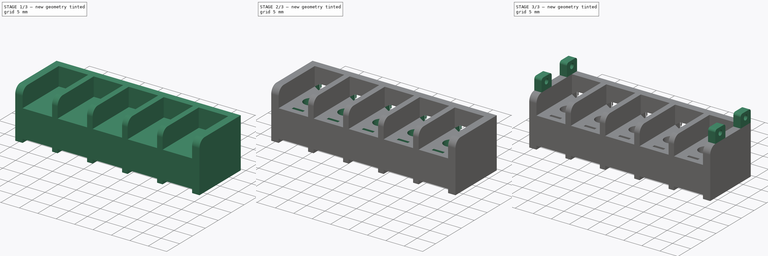
[diagram: build sequence overview — one tinted view per stage of 3, left to right]
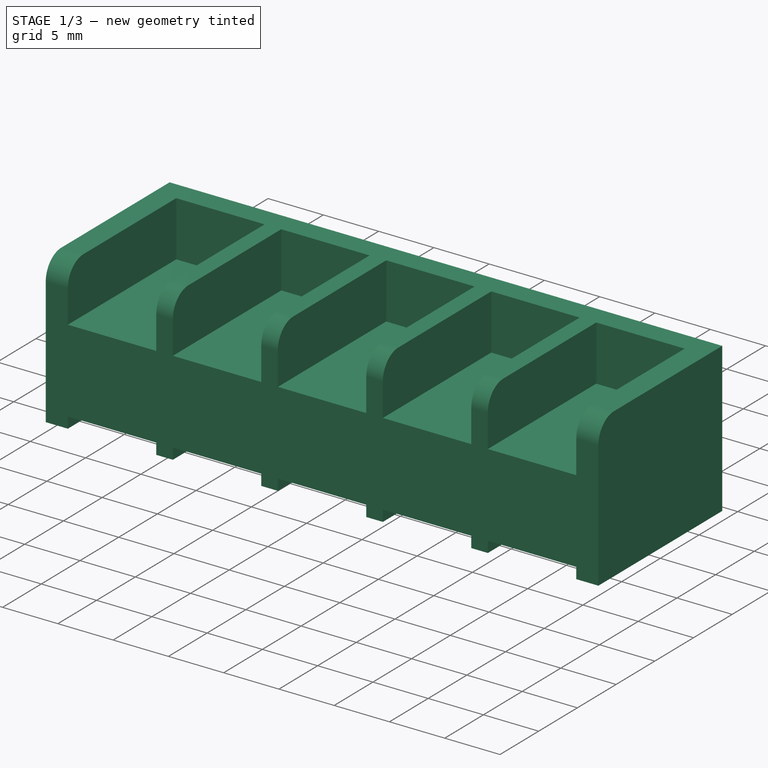
[diagram: stage 1 of 3 — iso view after this stage's code; geometry added in this stage tinted green]
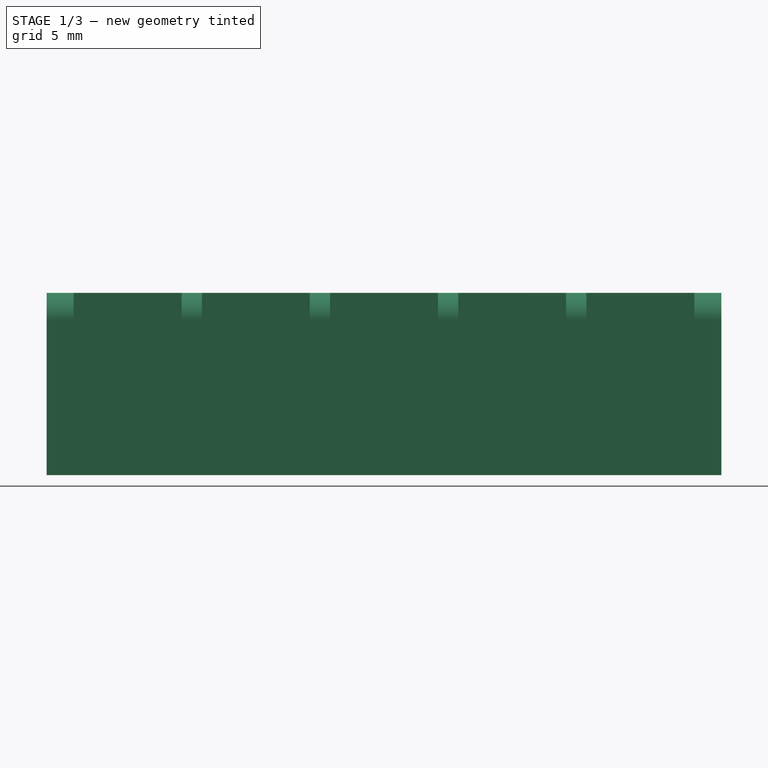
[diagram: stage 1 of 3 — front view after this stage's code; geometry added in this stage tinted green]
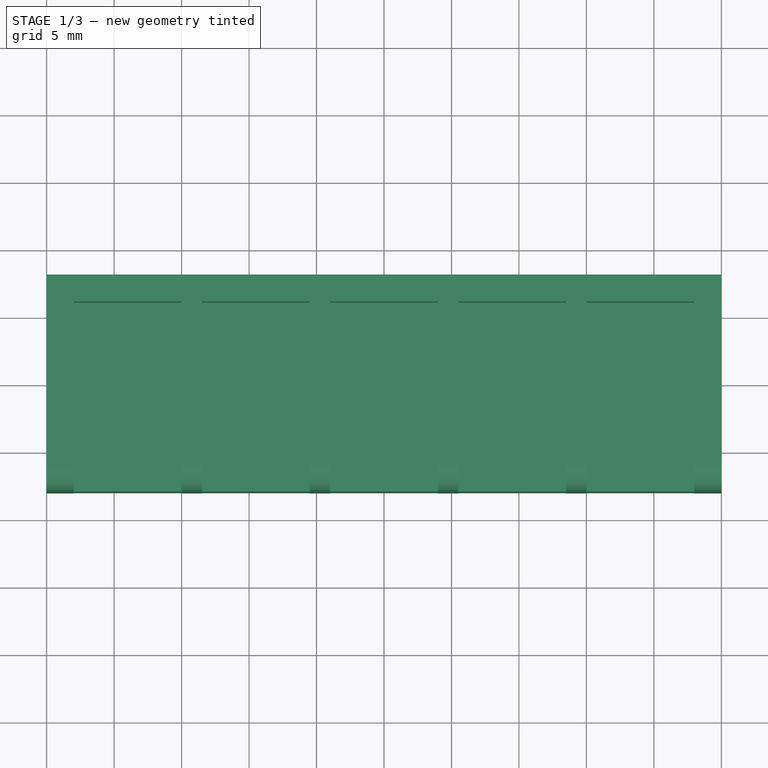
[diagram: stage 1 of 3 — top view after this stage's code; geometry added in this stage tinted green]
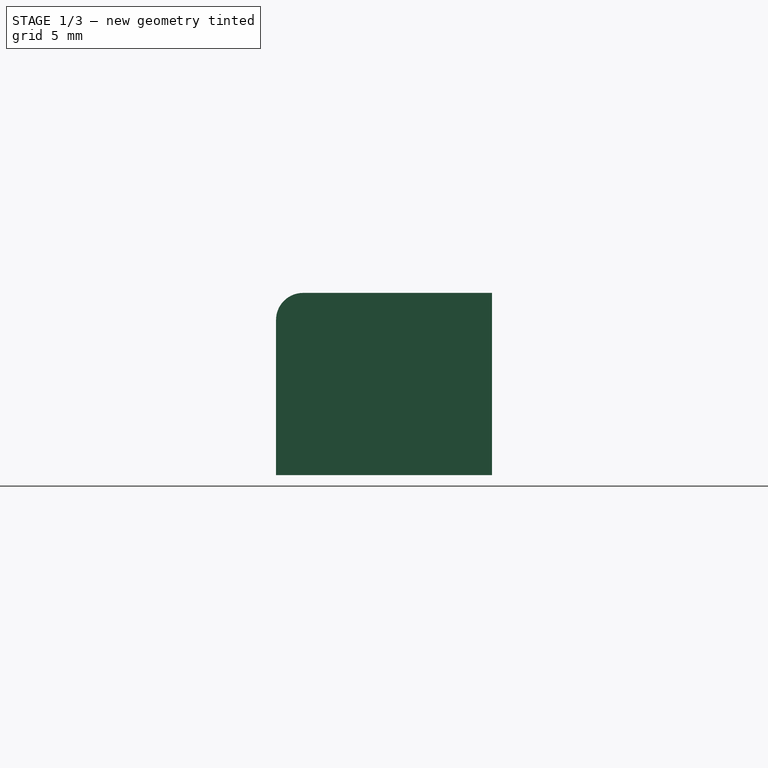
[diagram: stage 1 of 3 — right view after this stage's code; geometry added in this stage tinted green]
FCSTD DOCUMENT  (FreeCAD 0.19R23058 (Git))
Label: main
License: All rights reserved
LicenseURL: http://en.wikipedia.org/wiki/All_rights_reserved
objects: Sketcher::SketchObject×7, PartDesign::Line×7, PartDesign::Pocket×4, PartDesign::Pad×3, PartDesign::CoordinateSystem×1, PartDesign::Body×1
note: 30 computed .brp shape members not serialized (recipe doc carries the construction recipe); baked Part::Feature solids carry a one-line shape summary decoded from their .brp

FEATURE [Sketcher::SketchObject] Sketch
  MapMode = 5
  Placement = pos=(0,0,0) rot=(0.57735,0.57735,0.57735;2.0944rad)
  Support = -> [YZ_Plane]
  sketch-geometry (5):
    g0: LineSegment StartX=-6 StartY=13.5 StartZ=0 EndX=8 EndY=13.5 EndZ=0
    g1: LineSegment StartX=8 StartY=13.5 StartZ=0 EndX=8 EndY=0 EndZ=0
    g2: LineSegment StartX=8 StartY=0 StartZ=0 EndX=-8 EndY=0 EndZ=0
    g3: LineSegment StartX=-8 StartY=0 StartZ=0 EndX=-8 EndY=11.5 EndZ=0
    g4: ArcOfCircle CenterX=-6 CenterY=11.5 CenterZ=0 NormalX=0 NormalY=0 NormalZ=1 AngleXU=0 Radius=2 StartAngle=1.5708 EndAngle=3.14159
  constraints (13):
    c: Coincident(g0,g1)
    c: Coincident(g1,g2)
    c: Coincident(g2,g3)
    c: Horizontal(g0)
    c: Vertical(g1)
    c: Vertical(g3)
    c: PointOnObject(g2,g-1)
    c: Symmetric(g2,g1,g-2)
    c: DistanceX(g2,g2) = 16
    c: Tangent(g3,g4) = 1.5708
    c: Tangent(g0,g4) = 1.5708
    c: Radius(g4) = 2
    c: DistanceY(g1,g1) = 13.5
FEATURE [PartDesign::Pad] Pad
  Direction = (1,1,1)
  Length = 50
  Length2 = 100
  Midplane = true
  Placement = pos=(0,0,0) rot=(0.57735,0.57735,0.57735;2.0944rad)
  Profile = -> Sketch
  Type = 0
FEATURE [Sketcher::SketchObject] Sketch001
  ExternalGeometry = -> [Pad]
  MapMode = 5
  Placement = pos=(-3.5e-15,-8,1.8e-15) rot=(-0.57735,-0.57735,0.57735;4.18879rad)
  Support = -> [Pad]
  sketch-geometry (58):
    g0: LineSegment StartX=-1 StartY=-23 StartZ=0 EndX=0 EndY=-23 EndZ=0
    g1: LineSegment StartX=0 StartY=-23 StartZ=0 EndX=0 EndY=-15 EndZ=0
    g2: LineSegment StartX=0 StartY=-15 StartZ=0 EndX=-1 EndY=-15 EndZ=0
    g3: LineSegment StartX=-1 StartY=-15 StartZ=0 EndX=-1 EndY=-23 EndZ=0
    g4: LineSegment StartX=-1 StartY=-13.5 StartZ=0 EndX=0 EndY=-13.5 EndZ=0
    g5: LineSegment StartX=0 StartY=-13.5 StartZ=0 EndX=0 EndY=-5.5 EndZ=0
    g6: LineSegment StartX=0 StartY=-5.5 StartZ=0 EndX=-1 EndY=-5.5 EndZ=0
    g7: LineSegment StartX=-1 StartY=-5.5 StartZ=0 EndX=-1 EndY=-13.5 EndZ=0
    g8: LineSegment StartX=-1 StartY=-4 StartZ=0 EndX=0 EndY=-4 EndZ=0
    g9: LineSegment StartX=0 StartY=-4 StartZ=0 EndX=0 EndY=4 EndZ=0
    g10: LineSegment StartX=0 StartY=4 StartZ=0 EndX=-1 EndY=4 EndZ=0
    g11: LineSegment StartX=-1 StartY=4 StartZ=0 EndX=-1 EndY=-4 EndZ=0
    g12: LineSegment StartX=-1 StartY=5.5 StartZ=0 EndX=0 EndY=5.5 EndZ=0
    g13: LineSegment StartX=0 StartY=5.5 StartZ=0 EndX=0 EndY=13.5 EndZ=0
    g14: LineSegment StartX=0 StartY=13.5 StartZ=0 EndX=-1 EndY=13.5 EndZ=0
    g15: LineSegment StartX=-1 StartY=13.5 StartZ=0 EndX=-1 EndY=5.5 EndZ=0
    g16: LineSegment StartX=-1 StartY=15 StartZ=0 EndX=0 EndY=15 EndZ=0
    g17: LineSegment StartX=0 StartY=15 StartZ=0 EndX=0 EndY=23 EndZ=0
    g18: LineSegment StartX=0 StartY=23 StartZ=0 EndX=-1 EndY=23 EndZ=0
    g19: LineSegment StartX=-1 StartY=23 StartZ=0 EndX=-1 EndY=15 EndZ=0
    g20: LineSegment StartX=-13.5 StartY=-23 StartZ=0 EndX=-8.5 EndY=-23 EndZ=0
    g21: LineSegment StartX=-8.5 StartY=-23 StartZ=0 EndX=-8.5 EndY=-15 EndZ=0
    g22: LineSegment StartX=-8.5 StartY=-15 StartZ=0 EndX=-13.5 EndY=-15 EndZ=0
    g23: LineSegment StartX=-13.5 StartY=-15 StartZ=0 EndX=-13.5 EndY=-23 EndZ=0
    g24: LineSegment StartX=-13.5 StartY=-13.5 StartZ=0 EndX=-8.5 EndY=-13.5 EndZ=0
    g25: LineSegment StartX=-8.5 StartY=-13.5 StartZ=0 EndX=-8.5 EndY=-5.5 EndZ=0
    g26: LineSegment StartX=-8.5 StartY=-5.5 StartZ=0 EndX=-13.5 EndY=-5.5 EndZ=0
    g27: LineSegment StartX=-13.5 StartY=-5.5 StartZ=0 EndX=-13.5 EndY=-13.5 EndZ=0
    g28: LineSegment StartX=-13.5 StartY=-4 StartZ=0 EndX=-8.5 EndY=-4 EndZ=0
    g29: LineSegment StartX=-8.5 StartY=-4 StartZ=0 EndX=-8.5 EndY=4 EndZ=0
    g30: LineSegment StartX=-8.5 StartY=4 StartZ=0 EndX=-13.5 EndY=4 EndZ=0
    g31: LineSegment StartX=-13.5 StartY=4 StartZ=0 EndX=-13.5 EndY=-4 EndZ=0
    g32: LineSegment StartX=-13.5 StartY=5.5 StartZ=0 EndX=-8.5 EndY=5.5 EndZ=0
    g33: LineSegment StartX=-8.5 StartY=5.5 StartZ=0 EndX=-8.5 EndY=13.5 EndZ=0
    g34: LineSegment StartX=-8.5 StartY=13.5 StartZ=0 EndX=-13.5 EndY=13.5 EndZ=0
    g35: LineSegment StartX=-13.5 StartY=13.5 StartZ=0 EndX=-13.5 EndY=5.5 EndZ=0
    g36: LineSegment StartX=-13.5 StartY=15 StartZ=0 EndX=-8.5 EndY=15 EndZ=0
    g37: LineSegment StartX=-8.5 StartY=15 StartZ=0 EndX=-8.5 EndY=23 EndZ=0
    g38: LineSegment StartX=-8.5 StartY=23 StartZ=0 EndX=-13.5 EndY=23 EndZ=0
    g39: LineSegment StartX=-13.5 StartY=23 StartZ=0 EndX=-13.5 EndY=15 EndZ=0
    g40: LineSegment [constr] StartX=-8.5 StartY=-15 StartZ=0 EndX=-1 EndY=-15 EndZ=0
    g41: LineSegment [constr] StartX=-1 StartY=-15 StartZ=0 EndX=-1 EndY=-13.5 EndZ=0
    g42: LineSegment [constr] StartX=-1 StartY=-13.5 StartZ=0 EndX=-8.5 EndY=-13.5 EndZ=0
    g43: LineSegment [constr] StartX=-8.5 StartY=-13.5 StartZ=0 EndX=-8.5 EndY=-15 EndZ=0
    g44: LineSegment [constr] StartX=-8.5 StartY=-5.5 StartZ=0 EndX=-1 EndY=-5.5 EndZ=0
    g45: LineSegment [constr] StartX=-1 StartY=-5.5 StartZ=0 EndX=-1 EndY=-4 EndZ=0
    g46: LineSegment [constr] StartX=-1 StartY=-4 StartZ=0 EndX=-8.5 EndY=-4 EndZ=0
    g47: LineSegment [constr] StartX=-8.5 StartY=-4 StartZ=0 EndX=-8.5 EndY=-5.5 EndZ=0
    g48: LineSegment [constr] StartX=-8.5 StartY=4 StartZ=0 EndX=-1 EndY=4 EndZ=0
    g49: LineSegment [constr] StartX=-1 StartY=4 StartZ=0 EndX=-1 EndY=5.5 EndZ=0
    g50: LineSegment [constr] StartX=-1 StartY=5.5 StartZ=0 EndX=-8.5 EndY=5.5 EndZ=0
    g51: LineSegment [constr] StartX=-8.5 StartY=5.5 StartZ=0 EndX=-8.5 EndY=4 EndZ=0
    g52: LineSegment [constr] StartX=-8.5 StartY=13.5 StartZ=0 EndX=-1 EndY=13.5 EndZ=0
    g53: LineSegment [constr] StartX=-1 StartY=13.5 StartZ=0 EndX=-1 EndY=15 EndZ=0
    g54: LineSegment [constr] StartX=-1 StartY=15 StartZ=0 EndX=-8.5 EndY=15 EndZ=0
    g55: LineSegment [constr] StartX=-8.5 StartY=15 StartZ=0 EndX=-8.5 EndY=13.5 EndZ=0
    g56: LineSegment [constr] StartX=-8.5 StartY=-23 StartZ=0 EndX=-1 EndY=-23 EndZ=0
    g57: LineSegment [constr] StartX=-8.5 StartY=23 StartZ=0 EndX=-1 EndY=23 EndZ=0
  constraints (155):
    c: Coincident(g0,g1)
    c: Coincident(g1,g2)
    c: Coincident(g2,g3)
    c: Coincident(g3,g0)
    c: Horizontal(g0)
    c: Horizontal(g2)
    c: Vertical(g1)
    c: Vertical(g3)
    c: Coincident(g4,g5)
    c: Coincident(g5,g6)
    c: Coincident(g6,g7)
    c: Coincident(g7,g4)
    c: Horizontal(g4)
    c: Horizontal(g6)
    c: Vertical(g5)
    c: Vertical(g7)
    c: Coincident(g8,g9)
    c: Coincident(g9,g10)
    c: Coincident(g10,g11)
    c: Coincident(g11,g8)
    c: Horizontal(g8)
    c: Horizontal(g10)
    c: Vertical(g11)
    c: Coincident(g12,g13)
    c: Coincident(g13,g14)
    c: Coincident(g14,g15)
    c: Coincident(g15,g12)
    c: Horizontal(g12)
    c: Horizontal(g14)
    c: Vertical(g13)
    c: Vertical(g15)
    c: Coincident(g16,g17)
    c: Coincident(g17,g18)
    c: Coincident(g18,g19)
    c: Coincident(g19,g16)
    c: Horizontal(g16)
    c: Horizontal(g18)
    c: Vertical(g17)
    c: Vertical(g19)
    c: Coincident(g20,g21)
    c: Coincident(g21,g22)
    c: Coincident(g22,g23)
    c: Coincident(g23,g20)
    c: Horizontal(g20)
    c: Horizontal(g22)
    c: Vertical(g21)
    c: Vertical(g23)
    c: Coincident(g24,g25)
    c: Coincident(g25,g26)
    c: Coincident(g26,g27)
    c: Coincident(g27,g24)
    c: Horizontal(g24)
    c: Horizontal(g26)
    c: Vertical(g25)
    c: Vertical(g27)
    c: Coincident(g28,g29)
    c: Coincident(g29,g30)
    c: Coincident(g30,g31)
    c: Coincident(g31,g28)
    c: Horizontal(g28)
    c: Horizontal(g30)
    c: Vertical(g29)
    c: Vertical(g31)
    c: Coincident(g32,g33)
    c: Coincident(g33,g34)
    c: Coincident(g34,g35)
    c: Coincident(g35,g32)
    c: Horizontal(g32)
    c: Horizontal(g34)
    c: Vertical(g33)
    c: Vertical(g35)
    c: Coincident(g36,g37)
    c: Coincident(g37,g38)
    c: Coincident(g38,g39)
    c: Coincident(g39,g36)
    c: Horizontal(g36)
    c: Horizontal(g38)
    c: Vertical(g37)
    c: Vertical(g39)
    c: Coincident(g40,g41)
    c: Coincident(g41,g42)
    c: Coincident(g42,g43)
    c: Coincident(g43,g40)
    c: Horizontal(g40)
    c: Horizontal(g42)
    c: Vertical(g41)
    c: Vertical(g43)
    c: Coincident(g40,g21)
    c: Coincident(g41,g4)
    c: Coincident(g44,g45)
    c: Coincident(g45,g46)
    c: Coincident(g46,g47)
    c: Coincident(g47,g44)
    c: Horizontal(g44)
    c: Horizontal(g46)
    c: Vertical(g45)
    c: Vertical(g47)
    c: Coincident(g44,g25)
    c: Coincident(g45,g8)
    c: Coincident(g48,g49)
    c: Coincident(g49,g50)
    c: Coincident(g50,g51)
    c: Coincident(g51,g48)
    c: Horizontal(g48)
    c: Horizontal(g50)
    c: Vertical(g49)
    c: Vertical(g51)
    c: Coincident(g48,g29)
    c: Coincident(g49,g12)
    c: Coincident(g52,g53)
    c: Coincident(g53,g54)
    c: Coincident(g54,g55)
    c: Coincident(g55,g52)
    c: Horizontal(g52)
    c: Horizontal(g54)
    c: Vertical(g53)
    c: Vertical(g55)
    c: Coincident(g52,g33)
    c: Coincident(g53,g16)
    c: Coincident(g42,g24)
    c: Coincident(g2,g40)
    c: Coincident(g44,g6)
    c: Coincident(g46,g28)
    c: Coincident(g50,g32)
    c: Coincident(g10,g48)
    c: Coincident(g52,g14)
    c: Coincident(g54,g36)
    c: DistanceX(g0,g0) = 1
    c: Equal(g2,g4)
    c: Equal(g4,g8)
    c: Equal(g8,g12)
    c: Equal(g12,g16)
    c: DistanceX(g20,g20) = 5
    c: Equal(g22,g24)
    c: Equal(g24,g28)
    c: Equal(g28,g32)
    c: Equal(g32,g36)
    c: DistanceY(g41,g41) = 1.5
    c: Equal(g41,g45)
    c: Equal(g45,g49)
    c: Equal(g49,g53)
    c: Coincident(g56,g20)
    c: Coincident(g56,g0)
    c: Horizontal(g56)
    c: Coincident(g57,g37)
    c: Coincident(g57,g18)
    c: Horizontal(g57)
    c: DistanceY(g1,g1) = 8
    c: Equal(g1,g5)
    c: Equal(g5,g9)
    c: Equal(g9,g13)
    c: Equal(g13,g17)
    c: Symmetric(g8,g9,g-1)
    c: PointOnObject(g0,g-2)
    c: PointOnObject(g20,g-3)
FEATURE [PartDesign::Pocket] Pocket
  BaseFeature = -> Pad
  Length = 14
  Length2 = 100
  Placement = pos=(0,0,0) rot=(0.57735,0.57735,0.57735;2.0944rad)
  Profile = -> Sketch001
  Type = 0
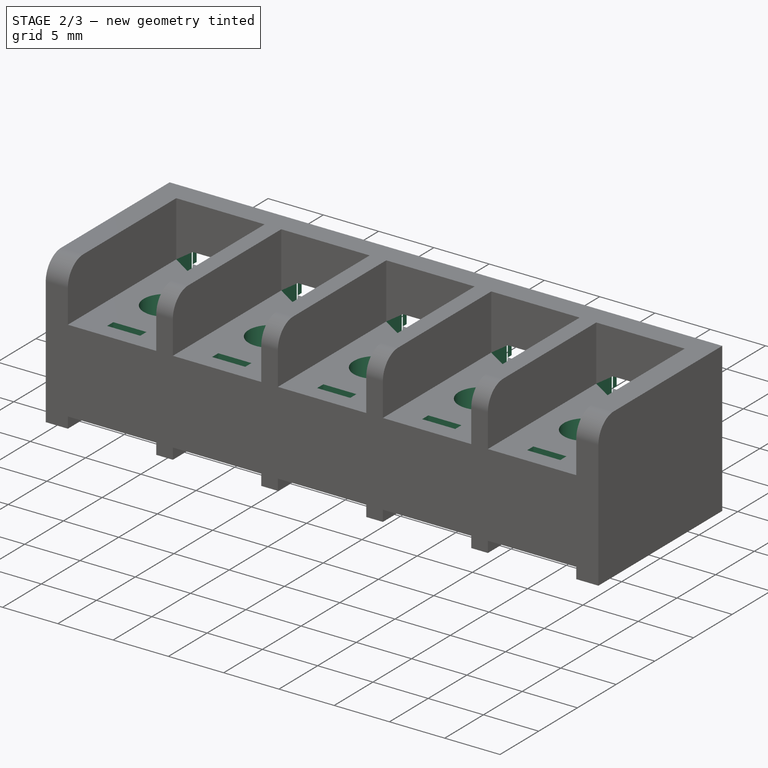
[diagram: stage 2 of 3 — iso view after this stage's code; geometry added in this stage tinted green]
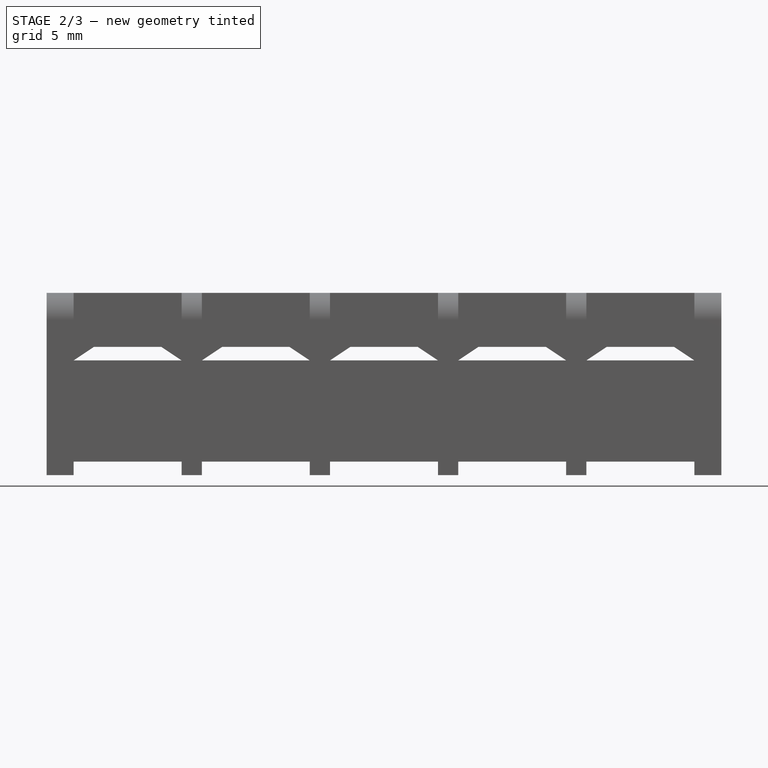
[diagram: stage 2 of 3 — front view after this stage's code; geometry added in this stage tinted green]
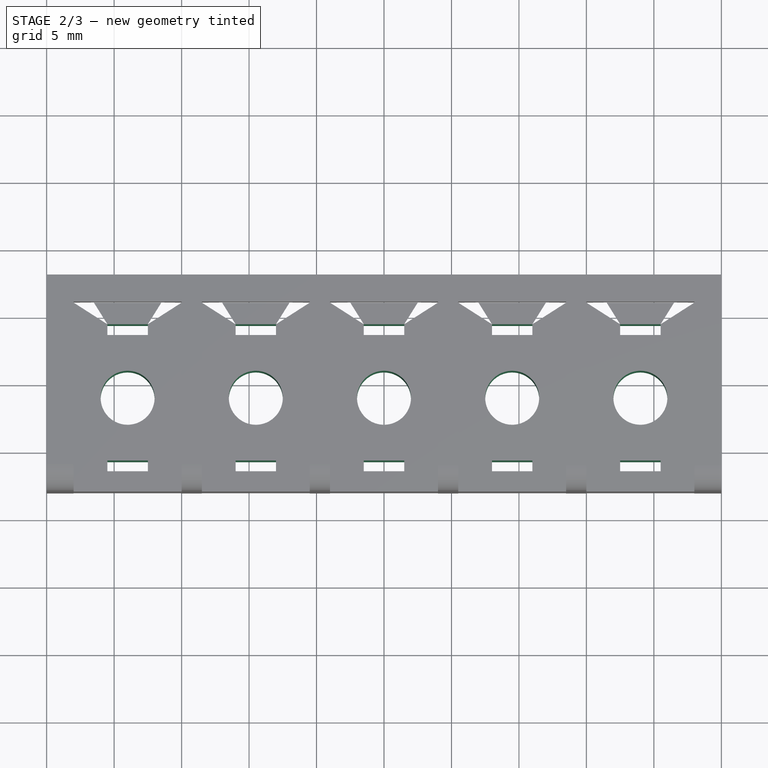
[diagram: stage 2 of 3 — top view after this stage's code; geometry added in this stage tinted green]
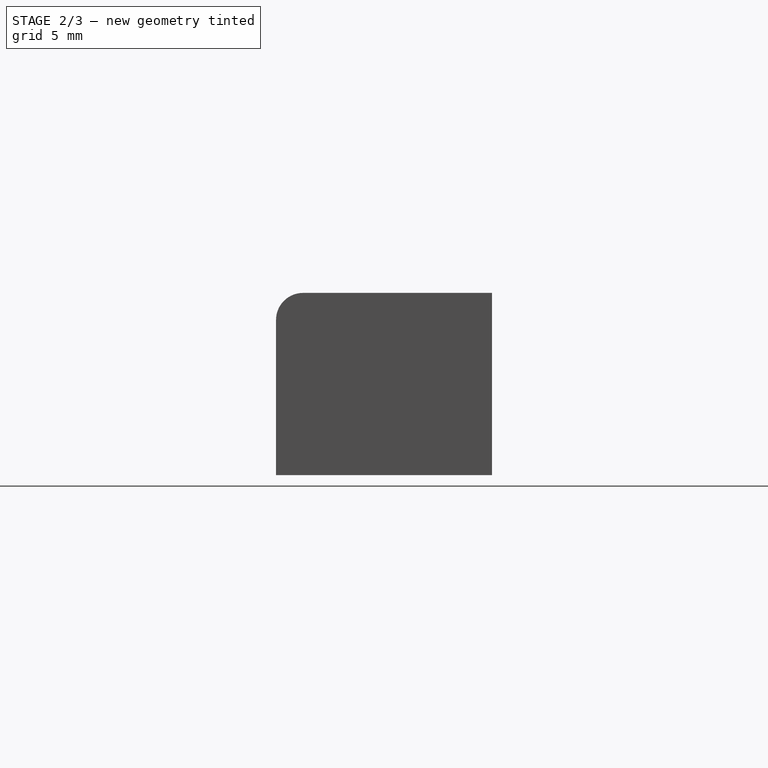
[diagram: stage 2 of 3 — right view after this stage's code; geometry added in this stage tinted green]
FEATURE [Sketcher::SketchObject] Sketch002
  ExternalGeometry = -> [Sketch001]
  MapMode = 5
  Placement = pos=(3.5e-15,8,-1.8e-15) rot=(0.57735,0.57735,0.57735;4.18879rad)
  Support = -> [Pocket]
  sketch-geometry (24):
    g0: LineSegment StartX=0 StartY=23 StartZ=0 EndX=12.5 EndY=23 EndZ=0
    g1: LineSegment StartX=12.5 StartY=23 StartZ=0 EndX=12.5 EndY=15 EndZ=0
    g2: LineSegment StartX=12.5 StartY=15 StartZ=0 EndX=0 EndY=15 EndZ=0
    g3: LineSegment StartX=0 StartY=15 StartZ=0 EndX=0 EndY=23 EndZ=0
    g4: LineSegment StartX=0 StartY=13.5 StartZ=0 EndX=12.5 EndY=13.5 EndZ=0
    g5: LineSegment StartX=12.5 StartY=13.5 StartZ=0 EndX=12.5 EndY=5.5 EndZ=0
    g6: LineSegment StartX=12.5 StartY=5.5 StartZ=0 EndX=0 EndY=5.5 EndZ=0
    g7: LineSegment StartX=0 StartY=5.5 StartZ=0 EndX=0 EndY=13.5 EndZ=0
    g8: LineSegment StartX=0 StartY=4 StartZ=0 EndX=12.5 EndY=4 EndZ=0
    g9: LineSegment StartX=12.5 StartY=4 StartZ=0 EndX=12.5 EndY=-4 EndZ=0
    g10: LineSegment StartX=12.5 StartY=-4 StartZ=0 EndX=0 EndY=-4 EndZ=0
    g11: LineSegment StartX=0 StartY=-4 StartZ=0 EndX=0 EndY=4 EndZ=0
    g12: LineSegment StartX=0 StartY=-5.5 StartZ=0 EndX=12.5 EndY=-5.5 EndZ=0
    g13: LineSegment StartX=12.5 StartY=-5.5 StartZ=0 EndX=12.5 EndY=-13.5 EndZ=0
    g14: LineSegment StartX=12.5 StartY=-13.5 StartZ=0 EndX=0 EndY=-13.5 EndZ=0
    g15: LineSegment StartX=0 StartY=-13.5 StartZ=0 EndX=0 EndY=-5.5 EndZ=0
    g16: LineSegment StartX=0 StartY=-15 StartZ=0 EndX=12.5 EndY=-15 EndZ=0
    g17: LineSegment StartX=12.5 StartY=-15 StartZ=0 EndX=12.5 EndY=-23 EndZ=0
    g18: LineSegment StartX=12.5 StartY=-23 StartZ=0 EndX=0 EndY=-23 EndZ=0
    g19: LineSegment StartX=0 StartY=-23 StartZ=0 EndX=0 EndY=-15 EndZ=0
    g20: LineSegment [constr] StartX=12.5 StartY=-13.5 StartZ=0 EndX=12.5 EndY=-15 EndZ=0
    g21: LineSegment [constr] StartX=12.5 StartY=-4 StartZ=0 EndX=12.5 EndY=-5.5 EndZ=0
    g22: LineSegment [constr] StartX=12.5 StartY=5.5 StartZ=0 EndX=12.5 EndY=4 EndZ=0
    g23: LineSegment [constr] StartX=12.5 StartY=13.5 StartZ=0 EndX=12.5 EndY=15 EndZ=0
  constraints (58):
    c: Coincident(g0,g1)
    c: Coincident(g1,g2)
    c: Coincident(g2,g3)
    c: Coincident(g3,g0)
    c: Horizontal(g0)
    c: Horizontal(g2)
    c: Vertical(g1)
    c: Coincident(g0,g-3)
    c: Coincident(g4,g5)
    c: Coincident(g5,g6)
    c: Coincident(g6,g7)
    c: Coincident(g7,g4)
    c: Horizontal(g4)
    c: Horizontal(g6)
    c: Vertical(g5)
    c: Coincident(g4,g-4)
    c: Coincident(g8,g9)
    c: Coincident(g9,g10)
    c: Coincident(g10,g11)
    c: Coincident(g11,g8)
    c: Horizontal(g8)
    c: Horizontal(g10)
    c: Vertical(g9)
    c: Coincident(g8,g-5)
    c: Coincident(g12,g13)
    c: Coincident(g13,g14)
    c: Coincident(g14,g15)
    c: Coincident(g15,g12)
    c: Horizontal(g12)
    c: Horizontal(g14)
    c: Vertical(g13)
    c: Coincident(g12,g-6)
    c: Coincident(g16,g17)
    c: Coincident(g17,g18)
    c: Coincident(g18,g19)
    c: Coincident(g19,g16)
    c: Horizontal(g16)
    c: Horizontal(g18)
    c: Vertical(g17)
    c: Coincident(g16,g-7)
    c: Coincident(g2,g-3)
    c: Coincident(g6,g-4)
    c: Coincident(g10,g-5)
    c: Coincident(g14,g-6)
    c: Coincident(g18,g-7)
    c: Coincident(g20,g13)
    c: Coincident(g20,g16)
    c: Vertical(g20)
    c: Coincident(g21,g9)
    c: Coincident(g21,g12)
    c: Coincident(g22,g5)
    c: Coincident(g22,g8)
    c: Coincident(g23,g4)
    c: Coincident(g23,g1)
    c: Vertical(g23)
    c: Vertical(g22)
    c: Vertical(g21)
    c: DistanceX(g17,g-8) = 1
FEATURE [PartDesign::Pocket] Pocket001
  BaseFeature = -> Pocket
  Length = 1.5
  Length2 = 100
  Placement = pos=(0,0,0) rot=(0.57735,0.57735,0.57735;2.0944rad)
  Profile = -> Sketch002
  Type = 0
FEATURE [Sketcher::SketchObject] Sketch003
  ExternalGeometry = -> [Sketch001]
  MapMode = 5
  Placement = pos=(2.9e-15,6.5,-3.7e-15) rot=(0.57735,0.57735,0.57735;4.18879rad)
  Support = -> [Pocket001]
  sketch-geometry (53):
    g0: LineSegment StartX=-3.9e-15 StartY=23 StartZ=0 EndX=8.5 EndY=23 EndZ=0
    g1: LineSegment StartX=8.5 StartY=23 StartZ=0 EndX=8.5 EndY=21.5 EndZ=0
    g2: LineSegment StartX=8.5 StartY=21.5 StartZ=0 EndX=9.5 EndY=21.5 EndZ=0
    g3: LineSegment StartX=9.5 StartY=21.5 StartZ=0 EndX=9.5 EndY=16.5 EndZ=0
    g4: LineSegment StartX=9.5 StartY=16.5 StartZ=0 EndX=8.5 EndY=16.5 EndZ=0
    g5: LineSegment StartX=8.5 StartY=16.5 StartZ=0 EndX=8.5 EndY=15 EndZ=0
    g6: LineSegment StartX=8.5 StartY=15 StartZ=0 EndX=-5.3e-15 EndY=15 EndZ=0
    g7: LineSegment StartX=-5.3e-15 StartY=15 StartZ=0 EndX=-3.9e-15 EndY=23 EndZ=0
    g8: LineSegment StartX=-4.4e-15 StartY=13.5 StartZ=0 EndX=8.5 EndY=13.5 EndZ=0
    g9: LineSegment StartX=8.5 StartY=13.5 StartZ=0 EndX=8.5 EndY=12 EndZ=0
    g10: LineSegment StartX=8.5 StartY=12 StartZ=0 EndX=9.5 EndY=12 EndZ=0
    g11: LineSegment StartX=9.5 StartY=12 StartZ=0 EndX=9.5 EndY=7 EndZ=0
    g12: LineSegment StartX=9.5 StartY=7 StartZ=0 EndX=8.5 EndY=7 EndZ=0
    g13: LineSegment StartX=8.5 StartY=7 StartZ=0 EndX=8.5 EndY=5.5 EndZ=0
    g14: LineSegment StartX=8.5 StartY=5.5 StartZ=0 EndX=-5.3e-15 EndY=5.5 EndZ=0
    g15: LineSegment StartX=-5.3e-15 StartY=5.5 StartZ=0 EndX=-4.4e-15 EndY=13.5 EndZ=0
    g16: LineSegment StartX=-5e-15 StartY=4 StartZ=0 EndX=8.5 EndY=4 EndZ=0
    g17: LineSegment StartX=8.5 StartY=4 StartZ=0 EndX=8.5 EndY=2.5 EndZ=0
    g18: LineSegment StartX=8.5 StartY=2.5 StartZ=0 EndX=9.5 EndY=2.5 EndZ=0
    g19: LineSegment StartX=9.5 StartY=2.5 StartZ=0 EndX=9.5 EndY=-2.5 EndZ=0
    g20: LineSegment StartX=9.5 StartY=-2.5 StartZ=0 EndX=8.5 EndY=-2.5 EndZ=0
    g21: LineSegment StartX=8.5 StartY=-2.5 StartZ=0 EndX=8.5 EndY=-4 EndZ=0
    g22: LineSegment StartX=8.5 StartY=-4 StartZ=0 EndX=-5.3e-15 EndY=-4 EndZ=0
    g23: LineSegment StartX=-5.3e-15 StartY=-4 StartZ=0 EndX=-5e-15 EndY=4 EndZ=0
    g24: LineSegment StartX=-5.3e-15 StartY=-5.5 StartZ=0 EndX=8.5 EndY=-5.5 EndZ=0
    g25: LineSegment StartX=8.5 StartY=-5.5 StartZ=0 EndX=8.5 EndY=-7 EndZ=0
    g26: LineSegment StartX=8.5 StartY=-7 StartZ=0 EndX=9.5 EndY=-7 EndZ=0
    g27: LineSegment StartX=9.5 StartY=-7 StartZ=0 EndX=9.5 EndY=-12 EndZ=0
    g28: LineSegment StartX=9.5 StartY=-12 StartZ=0 EndX=8.5 EndY=-12 EndZ=0
    g29: LineSegment StartX=8.5 StartY=-12 StartZ=0 EndX=8.5 EndY=-13.5 EndZ=0
    g30: LineSegment StartX=8.5 StartY=-13.5 StartZ=0 EndX=-5.3e-15 EndY=-13.5 EndZ=0
    g31: LineSegment StartX=-5.3e-15 StartY=-13.5 StartZ=0 EndX=-5.3e-15 EndY=-5.5 EndZ=0
    g32: LineSegment StartX=-6e-15 StartY=-15 StartZ=0 EndX=8.5 EndY=-15 EndZ=0
    g33: LineSegment StartX=8.5 StartY=-15 StartZ=0 EndX=8.5 EndY=-16.5 EndZ=0
    g34: LineSegment StartX=8.5 StartY=-16.5 StartZ=0 EndX=9.5 EndY=-16.5 EndZ=0
    g35: LineSegment StartX=9.5 StartY=-16.5 StartZ=0 EndX=9.5 EndY=-21.5 EndZ=0
    g36: LineSegment StartX=9.5 StartY=-21.5 StartZ=0 EndX=8.5 EndY=-21.5 EndZ=0
    g37: LineSegment StartX=8.5 StartY=-21.5 StartZ=0 EndX=8.5 EndY=-23 EndZ=0
    g38: LineSegment StartX=8.5 StartY=-23 StartZ=0 EndX=-5.3e-15 EndY=-23 EndZ=0
    g39: LineSegment StartX=-5.3e-15 StartY=-23 StartZ=0 EndX=-6e-15 EndY=-15 EndZ=0
    g40: LineSegment [constr] StartX=8.5 StartY=-15 StartZ=0 EndX=8.5 EndY=-13.5 EndZ=0
    g41: LineSegment [constr] StartX=8.5 StartY=-5.5 StartZ=0 EndX=8.5 EndY=-4 EndZ=0
    g42: LineSegment [constr] StartX=8.5 StartY=4 StartZ=0 EndX=8.5 EndY=5.5 EndZ=0
    g43: LineSegment [constr] StartX=8.5 StartY=13.5 StartZ=0 EndX=8.5 EndY=15 EndZ=0
    g44: LineSegment [constr] StartX=9.5 StartY=16.5 StartZ=0 EndX=9.5 EndY=12 EndZ=0
    g45: LineSegment [constr] StartX=9.5 StartY=7 StartZ=0 EndX=9.5 EndY=2.5 EndZ=0
    g46: LineSegment [constr] StartX=9.5 StartY=-2.5 StartZ=0 EndX=9.5 EndY=-7 EndZ=0
    g47: LineSegment [constr] StartX=9.5 StartY=-12 StartZ=0 EndX=9.5 EndY=-16.5 EndZ=0
    g48: LineSegment [constr] StartX=8.5 StartY=21.5 StartZ=0 EndX=8.5 EndY=16.5 EndZ=0
    g49: LineSegment [constr] StartX=8.5 StartY=12 StartZ=0 EndX=8.5 EndY=7 EndZ=0
    g50: LineSegment [constr] StartX=8.5 StartY=2.5 StartZ=0 EndX=8.5 EndY=-2.5 EndZ=0
    g51: LineSegment [constr] StartX=8.5 StartY=-7 StartZ=0 EndX=8.5 EndY=-12 EndZ=0
    g52: LineSegment [constr] StartX=8.5 StartY=-16.5 StartZ=0 EndX=8.5 EndY=-21.5 EndZ=0
  constraints (135):
    c: Horizontal(g0)
    c: Coincident(g0,g1)
    c: Vertical(g1)
    c: Coincident(g1,g2)
    c: Horizontal(g2)
    c: Coincident(g2,g3)
    c: Vertical(g3)
    c: Coincident(g3,g4)
    c: Horizontal(g4)
    c: Coincident(g4,g5)
    c: Vertical(g5)
    c: Coincident(g5,g6)
    c: Horizontal(g6)
    c: Coincident(g6,g7)
    c: Coincident(g7,g0)
    c: Horizontal(g8)
    c: Coincident(g8,g9)
    c: Vertical(g9)
    c: Coincident(g9,g10)
    c: Horizontal(g10)
    c: Coincident(g10,g11)
    c: Vertical(g11)
    c: Coincident(g11,g12)
    c: Horizontal(g12)
    c: Coincident(g12,g13)
    c: Vertical(g13)
    c: Coincident(g13,g14)
    c: Coincident(g14,g15)
    c: Coincident(g15,g8)
    c: Horizontal(g16)
    c: Coincident(g16,g17)
    c: Vertical(g17)
    c: Coincident(g17,g18)
    c: Horizontal(g18)
    c: Coincident(g18,g19)
    c: Vertical(g19)
    c: Coincident(g19,g20)
    c: Horizontal(g20)
    c: Coincident(g20,g21)
    c: Vertical(g21)
    c: Coincident(g21,g22)
    c: Coincident(g22,g23)
    c: Coincident(g23,g16)
    c: Horizontal(g24)
    c: Coincident(g24,g25)
    c: Vertical(g25)
    c: Coincident(g25,g26)
    c: Horizontal(g26)
    c: Coincident(g26,g27)
    c: Vertical(g27)
    c: Coincident(g27,g28)
    c: Horizontal(g28)
    c: Coincident(g28,g29)
    c: Vertical(g29)
    c: Coincident(g29,g30)
    c: Coincident(g30,g31)
    c: Coincident(g31,g24)
    c: Horizontal(g32)
    c: Coincident(g32,g33)
    c: Vertical(g33)
    c: Coincident(g33,g34)
    c: Horizontal(g34)
    c: Coincident(g34,g35)
    c: Vertical(g35)
    c: Coincident(g35,g36)
    c: Coincident(g36,g37)
    c: Vertical(g37)
    c: Coincident(g37,g38)
    c: Coincident(g38,g39)
    c: Coincident(g39,g32)
    c: Coincident(g-3,g0)
    c: Coincident(g-3,g6)
    c: Coincident(g-4,g8)
    c: Coincident(g-4,g14)
    c: Coincident(g-5,g16)
    c: Coincident(g22,g-5)
    c: Coincident(g-6,g24)
    c: Coincident(g30,g-6)
    c: Coincident(g32,g-7)
    c: Coincident(g-7,g38)
    c: Coincident(g40,g32)
    c: Coincident(g40,g29)
    c: Coincident(g41,g24)
    c: Coincident(g41,g21)
    c: Coincident(g42,g16)
    c: Coincident(g42,g13)
    c: Coincident(g43,g8)
    c: Coincident(g43,g5)
    c: Coincident(g44,g3)
    c: Coincident(g44,g10)
    c: Vertical(g44)
    c: Coincident(g45,g11)
    c: Coincident(g45,g18)
    c: Coincident(g46,g19)
    c: Coincident(g46,g26)
    c: Vertical(g46)
    c: Coincident(g47,g27)
    c: Coincident(g47,g34)
    c: Vertical(g47)
    c: Vertical(g40)
    c: Vertical(g41)
    c: Vertical(g42)
    c: Vertical(g43)
    c: Vertical(g45)
    c: Coincident(g48,g1)
    c: Coincident(g48,g4)
    c: Coincident(g49,g9)
    c: Coincident(g49,g12)
    c: Coincident(g50,g17)
    c: Coincident(g50,g20)
    c: Coincident(g51,g25)
    c: Coincident(g51,g28)
    c: Coincident(g52,g33)
    c: Coincident(g52,g36)
    c: Vertical(g52)
    c: Vertical(g51)
    c: Vertical(g50)
    c: Vertical(g49)
    c: Vertical(g48)
    c: Equal(g1,g5)
    c: Equal(g5,g9)
    c: Equal(g9,g13)
    c: Equal(g13,g17)
    c: Equal(g17,g21)
    c: Equal(g21,g25)
    c: Equal(g25,g29)
    c: Equal(g29,g33)
    c: Equal(g33,g37)
    c: Equal(g35,g27)
    c: Equal(g27,g19)
    c: Equal(g19,g11)
    c: Equal(g11,g3)
    c: Coincident(g37,g-8)
    c: DistanceX(g36,g36) = 1
    c: DistanceY(g35,g35) = 5
FEATURE [PartDesign::Pocket] Pocket002
  BaseFeature = -> Pocket001
  Length = 0.5
  Length2 = 100
  Placement = pos=(0,0,0) rot=(0.57735,0.57735,0.57735;2.0944rad)
  Profile = -> Sketch003
  Type = 0
FEATURE [Sketcher::SketchObject] Sketch004
  ExternalGeometry = -> [Pocket002]
  MapMode = 5
  Placement = pos=(-9e-16,3.3e-15,8.5) rot=(0,0,-1;1.5708rad)
  Support = -> [Pocket002]
  sketch-geometry (61):
    g0: LineSegment StartX=-4.4 StartY=-17.5 StartZ=0 EndX=-3.6 EndY=-17.5 EndZ=0
    g1: LineSegment StartX=-3.6 StartY=-17.5 StartZ=0 EndX=-3.6 EndY=-20.5 EndZ=0
    g2: LineSegment StartX=-3.6 StartY=-20.5 StartZ=0 EndX=-4.4 EndY=-20.5 EndZ=0
    g3: LineSegment StartX=-4.4 StartY=-20.5 StartZ=0 EndX=-4.4 EndY=-17.5 EndZ=0
    g4: LineSegment StartX=-4.4 StartY=-8 StartZ=0 EndX=-3.6 EndY=-8 EndZ=0
    g5: LineSegment StartX=-3.6 StartY=-8 StartZ=0 EndX=-3.6 EndY=-11 EndZ=0
    g6: LineSegment StartX=-3.6 StartY=-11 StartZ=0 EndX=-4.4 EndY=-11 EndZ=0
    g7: LineSegment StartX=-4.4 StartY=-11 StartZ=0 EndX=-4.4 EndY=-8 EndZ=0
    g8: LineSegment StartX=-4.4 StartY=1.5 StartZ=0 EndX=-3.6 EndY=1.5 EndZ=0
    g9: LineSegment StartX=-3.6 StartY=1.5 StartZ=0 EndX=-3.6 EndY=-1.5 EndZ=0
    g10: LineSegment StartX=-3.6 StartY=-1.5 StartZ=0 EndX=-4.4 EndY=-1.5 EndZ=0
    g11: LineSegment StartX=-4.4 StartY=-1.5 StartZ=0 EndX=-4.4 EndY=1.5 EndZ=0
    g12: LineSegment StartX=-4.4 StartY=11 StartZ=0 EndX=-3.6 EndY=11 EndZ=0
    g13: LineSegment StartX=-3.6 StartY=11 StartZ=0 EndX=-3.6 EndY=8 EndZ=0
    g14: LineSegment StartX=-3.6 StartY=8 StartZ=0 EndX=-4.4 EndY=8 EndZ=0
    g15: LineSegment StartX=-4.4 StartY=8 StartZ=0 EndX=-4.4 EndY=11 EndZ=0
    g16: LineSegment StartX=-4.4 StartY=20.5 StartZ=0 EndX=-3.6 EndY=20.5 EndZ=0
    g17: LineSegment StartX=-3.6 StartY=20.5 StartZ=0 EndX=-3.6 EndY=17.5 EndZ=0
    g18: LineSegment StartX=-3.6 StartY=17.5 StartZ=0 EndX=-4.4 EndY=17.5 EndZ=0
    g19: LineSegment StartX=-4.4 StartY=17.5 StartZ=0 EndX=-4.4 EndY=20.5 EndZ=0
    g20: LineSegment [constr] StartX=-3.6 StartY=17.5 StartZ=0 EndX=-3.6 EndY=11 EndZ=0
    g21: LineSegment [constr] StartX=-3.6 StartY=8 StartZ=0 EndX=-3.6 EndY=1.5 EndZ=0
    g22: LineSegment [constr] StartX=-3.6 StartY=-1.5 StartZ=0 EndX=-3.6 EndY=-8 EndZ=0
    g23: LineSegment [constr] StartX=-3.6 StartY=-11 StartZ=0 EndX=-3.6 EndY=-17.5 EndZ=0
    g24: LineSegment StartX=5.7 StartY=-17.5 StartZ=0 EndX=6.5 EndY=-17.5 EndZ=0
    g25: LineSegment StartX=6.5 StartY=-17.5 StartZ=0 EndX=6.5 EndY=-20.5 EndZ=0
    g26: LineSegment StartX=6.5 StartY=-20.5 StartZ=0 EndX=5.7 EndY=-20.5 EndZ=0
    g27: LineSegment StartX=5.7 StartY=-20.5 StartZ=0 EndX=5.7 EndY=-17.5 EndZ=0
    g28: LineSegment StartX=5.7 StartY=-8 StartZ=0 EndX=6.5 EndY=-8 EndZ=0
    g29: LineSegment StartX=6.5 StartY=-8 StartZ=0 EndX=6.5 EndY=-11 EndZ=0
    g30: LineSegment StartX=6.5 StartY=-11 StartZ=0 EndX=5.7 EndY=-11 EndZ=0
    g31: LineSegment StartX=5.7 StartY=-11 StartZ=0 EndX=5.7 EndY=-8 EndZ=0
    g32: LineSegment StartX=5.7 StartY=1.5 StartZ=0 EndX=6.5 EndY=1.5 EndZ=0
    g33: LineSegment StartX=6.5 StartY=1.5 StartZ=0 EndX=6.5 EndY=-1.5 EndZ=0
    g34: LineSegment StartX=6.5 StartY=-1.5 StartZ=0 EndX=5.7 EndY=-1.5 EndZ=0
    g35: LineSegment StartX=5.7 StartY=-1.5 StartZ=0 EndX=5.7 EndY=1.5 EndZ=0
    g36: LineSegment StartX=5.7 StartY=11 StartZ=0 EndX=6.5 EndY=11 EndZ=0
    g37: LineSegment StartX=6.5 StartY=11 StartZ=0 EndX=6.5 EndY=8 EndZ=0
    g38: LineSegment StartX=6.5 StartY=8 StartZ=0 EndX=5.7 EndY=8 EndZ=0
    g39: LineSegment StartX=5.7 StartY=8 StartZ=0 EndX=5.7 EndY=11 EndZ=0
    g40: LineSegment StartX=5.7 StartY=20.5 StartZ=0 EndX=6.5 EndY=20.5 EndZ=0
    g41: LineSegment StartX=6.5 StartY=20.5 StartZ=0 EndX=6.5 EndY=17.5 EndZ=0
    g42: LineSegment StartX=6.5 StartY=17.5 StartZ=0 EndX=5.7 EndY=17.5 EndZ=0
    g43: LineSegment StartX=5.7 StartY=17.5 StartZ=0 EndX=5.7 EndY=20.5 EndZ=0
    g44: LineSegment [constr] StartX=6.5 StartY=17.5 StartZ=0 EndX=6.5 EndY=11 EndZ=0
    g45: LineSegment [constr] StartX=6.5 StartY=8 StartZ=0 EndX=6.5 EndY=1.5 EndZ=0
    g46: LineSegment [constr] StartX=6.5 StartY=-1.5 StartZ=0 EndX=6.5 EndY=-8 EndZ=0
    g47: LineSegment [constr] StartX=6.5 StartY=-11 StartZ=0 EndX=6.5 EndY=-17.5 EndZ=0
    g48: LineSegment [constr] StartX=-3.6 StartY=-20.5 StartZ=0 EndX=5.7 EndY=-20.5 EndZ=0
    g49: LineSegment [constr] StartX=-3.6 StartY=-17.5 StartZ=0 EndX=5.7 EndY=-20.5 EndZ=0
    g50: LineSegment [constr] StartX=-3.6 StartY=-20.5 StartZ=0 EndX=5.7 EndY=-17.5 EndZ=0
    g51: GeomPoint X=1.05 Y=-19 Z=0
    g52: LineSegment [constr] StartX=1.05 StartY=-19 StartZ=0 EndX=1.05 EndY=-9.5 EndZ=0
    g53: LineSegment [constr] StartX=1.05 StartY=-9.5 StartZ=0 EndX=1.05 EndY=0 EndZ=0
    g54: LineSegment [constr] StartX=1.05 StartY=0 StartZ=0 EndX=1.05 EndY=9.5 EndZ=0
    g55: LineSegment [constr] StartX=1.05 StartY=9.5 StartZ=0 EndX=1.05 EndY=19 EndZ=0
    g56: Circle CenterX=1.05 CenterY=-19 CenterZ=0 NormalX=0 NormalY=0 NormalZ=1 AngleXU=0 Radius=2
    g57: Circle CenterX=1.05 CenterY=-9.5 CenterZ=0 NormalX=0 NormalY=0 NormalZ=1 AngleXU=0 Radius=2
    g58: Circle CenterX=1.05 CenterY=0 CenterZ=0 NormalX=0 NormalY=0 NormalZ=1 AngleXU=0 Radius=2
    g59: Circle CenterX=1.05 CenterY=9.5 CenterZ=0 NormalX=0 NormalY=0 NormalZ=1 AngleXU=0 Radius=2
    g60: Circle CenterX=1.05 CenterY=19 CenterZ=0 NormalX=0 NormalY=0 NormalZ=1 AngleXU=0 Radius=2
  constraints (164):
    c: Coincident(g0,g1)
    c: Coincident(g1,g2)
    c: Coincident(g2,g3)
    c: Coincident(g3,g0)
    c: Horizontal(g0)
    c: Horizontal(g2)
    c: Vertical(g1)
    c: Vertical(g3)
    c: Coincident(g4,g5)
    c: Coincident(g5,g6)
    c: Coincident(g6,g7)
    c: Coincident(g7,g4)
    c: Horizontal(g4)
    c: Horizontal(g6)
    c: Vertical(g5)
    c: Vertical(g7)
    c: Coincident(g8,g9)
    c: Coincident(g9,g10)
    c: Coincident(g10,g11)
    c: Coincident(g11,g8)
    c: Horizontal(g8)
    c: Horizontal(g10)
    c: Vertical(g11)
    c: Coincident(g12,g13)
    c: Coincident(g13,g14)
    c: Coincident(g14,g15)
    c: Coincident(g15,g12)
    c: Horizontal(g12)
    c: Horizontal(g14)
    c: Vertical(g13)
    c: Vertical(g15)
    c: Coincident(g16,g17)
    c: Coincident(g17,g18)
    c: Coincident(g18,g19)
    c: Coincident(g19,g16)
    c: Horizontal(g16)
    c: Horizontal(g18)
    c: Vertical(g17)
    c: Vertical(g19)
    c: Coincident(g20,g17)
    c: Coincident(g20,g12)
    c: Vertical(g20)
    c: Coincident(g21,g13)
    c: Coincident(g21,g8)
    c: Vertical(g21)
    c: Coincident(g22,g9)
    c: Coincident(g22,g4)
    c: Vertical(g22)
    c: Coincident(g23,g5)
    c: Coincident(g23,g0)
    c: Vertical(g23)
    c: Equal(g0,g6)
    c: Equal(g6,g10)
    c: Equal(g10,g14)
    c: Equal(g14,g18)
    c: Symmetric(g9,g8,g-1)
    c: Equal(g1,g5)
    c: Equal(g5,g9)
    c: Equal(g9,g13)
    c: Equal(g13,g17)
    c: Equal(g23,g22)
    c: Equal(g22,g21)
    c: Equal(g21,g20)
    c: DistanceY(g3,g3) = 3
    c: DistanceX(g2,g2) = 0.8
    c: DistanceY(g23,g23) = 6.5
    c: DistanceX(g9,g-1) = 3.6
    c: Coincident(g24,g25)
    c: Coincident(g25,g26)
    c: Coincident(g26,g27)
    c: Coincident(g27,g24)
    c: Horizontal(g24)
    c: Horizontal(g26)
    c: Vertical(g25)
    c: Vertical(g27)
    c: Coincident(g28,g29)
    c: Coincident(g29,g30)
    c: Coincident(g30,g31)
    c: Coincident(g31,g28)
    c: Horizontal(g28)
    c: Horizontal(g30)
    c: Vertical(g29)
    c: Vertical(g31)
    c: Coincident(g32,g33)
    c: Coincident(g33,g34)
    c: Coincident(g34,g35)
    c: Coincident(g35,g32)
    c: Horizontal(g32)
    c: Horizontal(g34)
    c: Vertical(g35)
    c: Coincident(g36,g37)
    c: Coincident(g37,g38)
    c: Coincident(g38,g39)
    c: Coincident(g39,g36)
    c: Horizontal(g36)
    c: Horizontal(g38)
    c: Vertical(g37)
    c: Vertical(g39)
    c: Coincident(g40,g41)
    c: Coincident(g41,g42)
    c: Coincident(g42,g43)
    c: Coincident(g43,g40)
    c: Horizontal(g40)
    c: Horizontal(g42)
    c: Vertical(g41)
    c: Vertical(g43)
    c: Coincident(g44,g41)
    c: Coincident(g44,g36)
    c: Vertical(g44)
    c: Coincident(g45,g37)
    c: Coincident(g45,g32)
    c: Vertical(g45)
    c: Coincident(g46,g33)
    c: Coincident(g46,g28)
    c: Vertical(g46)
    c: Coincident(g47,g29)
    c: Coincident(g47,g24)
    c: Vertical(g47)
    c: Equal(g24,g30)
    c: Equal(g30,g34)
    c: Equal(g34,g38)
    c: Equal(g38,g42)
    c: Equal(g25,g29)
    c: Equal(g29,g33)
    c: Equal(g33,g37)
    c: Equal(g37,g41)
    c: Equal(g47,g46)
    c: Equal(g46,g45)
    c: Equal(g45,g44)
    c: Equal(g3,g27) = 4
    c: Equal(g2,g26) = 1
    c: Equal(g23,g47) = 5.5
    c: Coincident(g48,g1)
    c: Coincident(g48,g26)
    c: DistanceX(g25,g-3) = 1.5
    c: Coincident(g49,g0)
    c: Coincident(g49,g26)
    c: Coincident(g50,g1)
    c: Coincident(g50,g24)
    c: PointOnObject(g51,g50)
    c: PointOnObject(g51,g49)
    c: Symmetric(g33,g32,g-1)
    c: Vertical(g52)
    c: Coincident(g53,g52)
    c: PointOnObject(g53,g-1)
    c: Vertical(g53)
    c: Coincident(g54,g53)
    c: Vertical(g54)
    c: Coincident(g55,g54)
    c: Vertical(g55)
    c: Equal(g53,g54)
    c: Equal(g54,g55)
    c: Coincident(g52,g51)
    c: Equal(g52,g53)
    c: Coincident(g56,g51)
    c: Coincident(g57,g52)
    c: Coincident(g58,g53)
    c: Coincident(g59,g54)
    c: Coincident(g60,g55)
    c: Radius(g60) = 2
    c: Equal(g60,g59)
    c: Equal(g59,g58)
    c: Equal(g58,g57)
    c: Equal(g57,g56)
FEATURE [PartDesign::Pocket] Pocket003
  BaseFeature = -> Pocket002
  Length = 8
  Length2 = 100
  Placement = pos=(0,0,0) rot=(0.57735,0.57735,0.57735;2.0944rad)
  Profile = -> Sketch004
  Type = 0
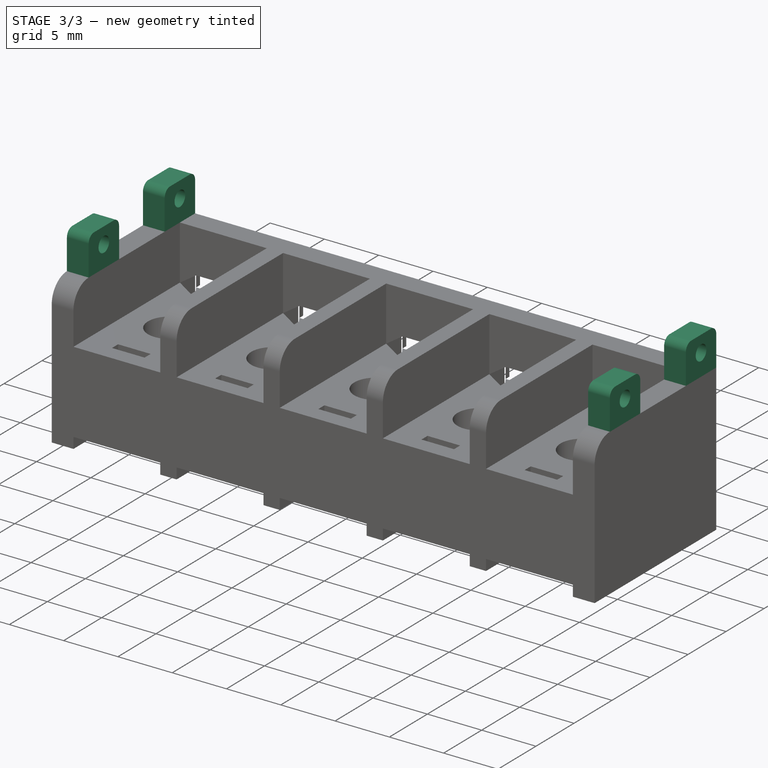
[diagram: stage 3 of 3 — iso view after this stage's code; geometry added in this stage tinted green]
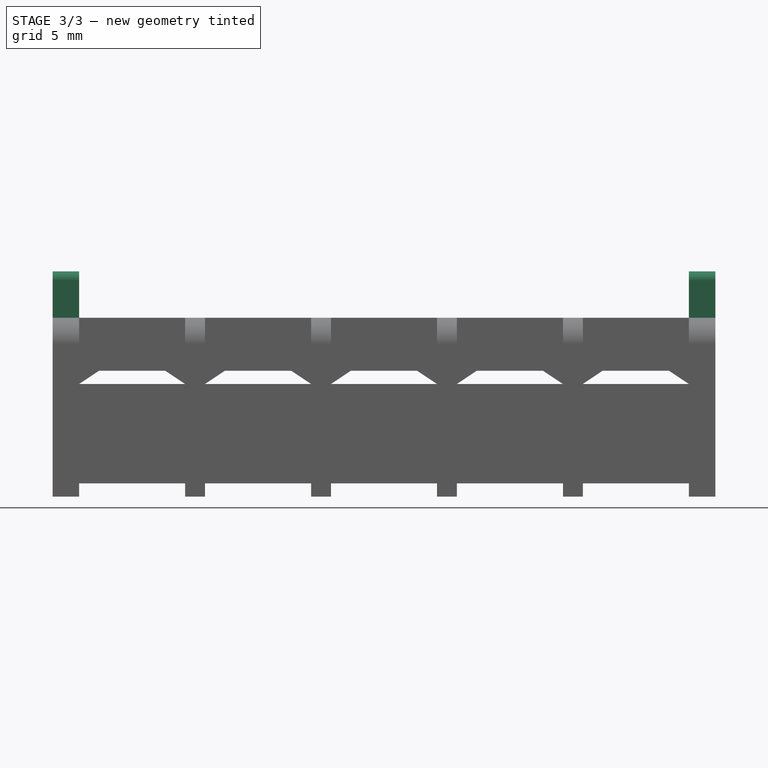
[diagram: stage 3 of 3 — front view after this stage's code; geometry added in this stage tinted green]
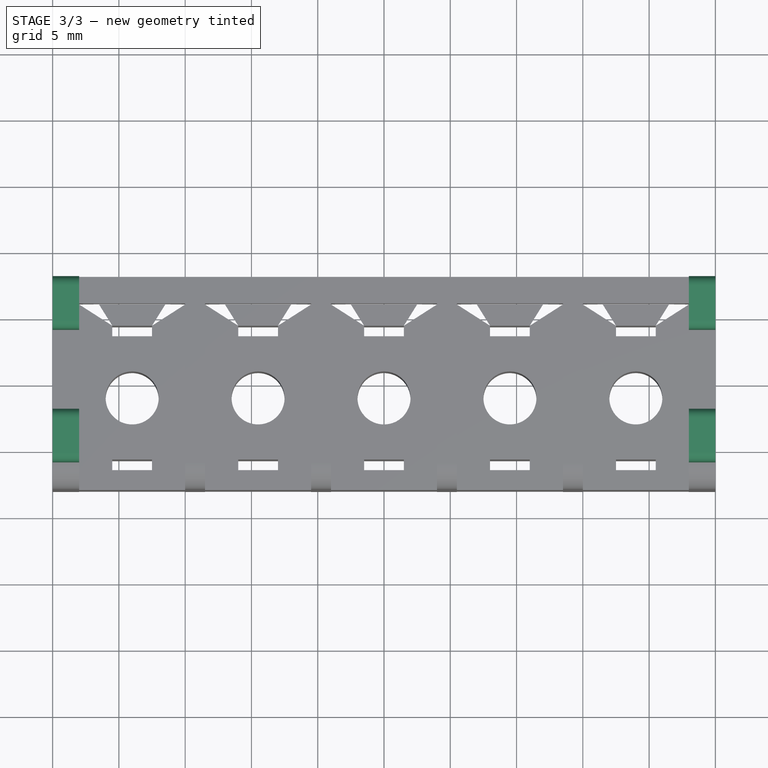
[diagram: stage 3 of 3 — top view after this stage's code; geometry added in this stage tinted green]
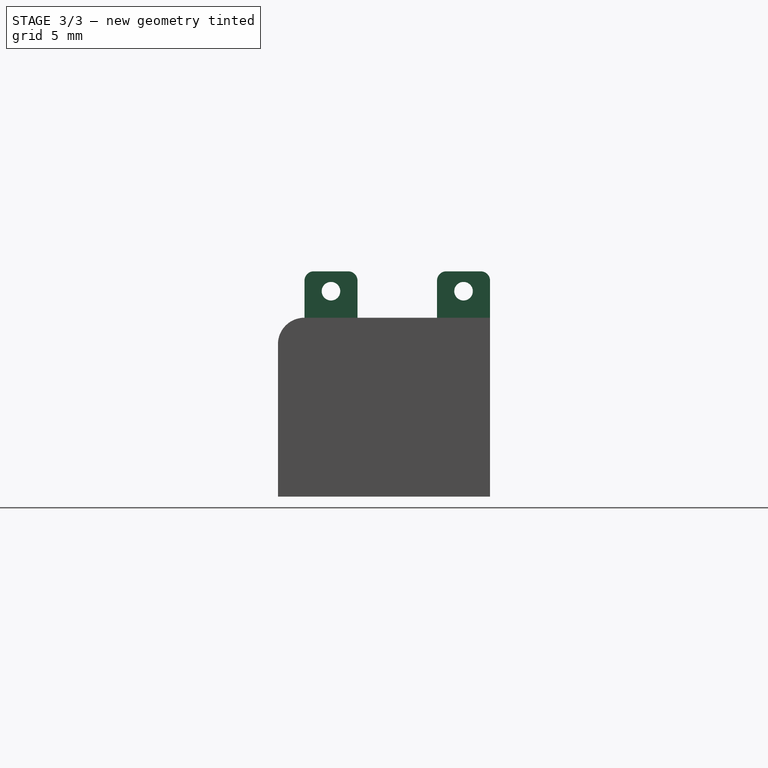
[diagram: stage 3 of 3 — right view after this stage's code; geometry added in this stage tinted green]
FEATURE [Sketcher::SketchObject] Sketch005
  ExternalGeometry = -> [Pocket003]
  MapMode = 5
  Placement = pos=(-25,5.5e-15,-5.5e-15) rot=(0.57735,0.57735,-0.57735;4.18879rad)
  Support = -> [Pocket003]
  sketch-geometry (19):
    g0: LineSegment StartX=-6 StartY=-13.5 StartZ=0 EndX=-2 EndY=-13.5 EndZ=0
    g1: LineSegment StartX=-2 StartY=-13.5 StartZ=0 EndX=-2 EndY=-16.3 EndZ=0
    g2: LineSegment StartX=-2.7 StartY=-17 StartZ=0 EndX=-5.3 EndY=-17 EndZ=0
    g3: LineSegment StartX=-6 StartY=-16.3 StartZ=0 EndX=-6 EndY=-13.5 EndZ=0
    g4: LineSegment StartX=4 StartY=-13.5 StartZ=0 EndX=8 EndY=-13.5 EndZ=0
    g5: LineSegment StartX=8 StartY=-13.5 StartZ=0 EndX=8 EndY=-16.3 EndZ=0
    g6: LineSegment StartX=7.3 StartY=-17 StartZ=0 EndX=4.7 EndY=-17 EndZ=0
    g7: LineSegment StartX=4 StartY=-16.3 StartZ=0 EndX=4 EndY=-13.5 EndZ=0
    g8: ArcOfCircle CenterX=-5.3 CenterY=-16.3 CenterZ=0 NormalX=0 NormalY=0 NormalZ=1 AngleXU=0 Radius=0.7 StartAngle=3.14159 EndAngle=4.71239
    g9: ArcOfCircle CenterX=-2.7 CenterY=-16.3 CenterZ=0 NormalX=0 NormalY=0 NormalZ=1 AngleXU=0 Radius=0.7 StartAngle=4.71239 EndAngle=6.28319
    g10: ArcOfCircle CenterX=4.7 CenterY=-16.3 CenterZ=0 NormalX=0 NormalY=0 NormalZ=1 AngleXU=0 Radius=0.7 StartAngle=3.14159 EndAngle=4.71239
    g11: ArcOfCircle CenterX=7.3 CenterY=-16.3 CenterZ=0 NormalX=0 NormalY=0 NormalZ=1 AngleXU=0 Radius=0.7 StartAngle=4.71239 EndAngle=6.28319
    g12: Circle CenterX=-4 CenterY=-15.5 CenterZ=0 NormalX=0 NormalY=0 NormalZ=1 AngleXU=0 Radius=0.7
    g13: Circle CenterX=6 CenterY=-15.5 CenterZ=0 NormalX=0 NormalY=0 NormalZ=1 AngleXU=0 Radius=0.7
    g14: LineSegment [constr] StartX=-4 StartY=-15.5 StartZ=0 EndX=6 EndY=-15.5 EndZ=0
    g15: LineSegment [constr] StartX=-6 StartY=-13.5 StartZ=0 EndX=-4 EndY=-15.5 EndZ=0
    g16: LineSegment [constr] StartX=-4 StartY=-15.5 StartZ=0 EndX=-2 EndY=-13.5 EndZ=0
    g17: LineSegment [constr] StartX=4 StartY=-13.5 StartZ=0 EndX=6 EndY=-15.5 EndZ=0
    g18: LineSegment [constr] StartX=6 StartY=-15.5 StartZ=0 EndX=8 EndY=-13.5 EndZ=0
  constraints (46):
    c: Coincident(g0,g1)
    c: Coincident(g3,g0)
    c: Horizontal(g0)
    c: Horizontal(g2)
    c: Vertical(g1)
    c: Vertical(g3)
    c: Coincident(g4,g5)
    c: Coincident(g7,g4)
    c: Horizontal(g4)
    c: Horizontal(g6)
    c: Vertical(g5)
    c: Vertical(g7)
    c: Tangent(g3,g8) = 1.5708
    c: Tangent(g2,g8) = 1.5708
    c: Tangent(g2,g9) = 1.5708
    c: Tangent(g1,g9) = 1.5708
    c: Tangent(g7,g10) = 1.5708
    c: Tangent(g6,g10) = 1.5708
    c: Tangent(g5,g11) = 1.5708
    c: Tangent(g6,g11) = 1.5708
    c: Equal(g0,g4)
    c: DistanceX(g0,g0) = 4
    c: Radius(g8) = 0.7
    c: Equal(g8,g9)
    c: Equal(g9,g10)
    c: Equal(g10,g11)
    c: DistanceY(g2,g0) = 3.5
    c: Coincident(g0,g-3)
    c: Equal(g1,g7)
    c: Coincident(g4,g-3)
    c: Coincident(g14,g12)
    c: Coincident(g14,g13)
    c: Horizontal(g14)
    c: Equal(g12,g13)
    c: Radius(g12) = 0.7
    c: DistanceY(g12,g0) = 2
    c: Coincident(g0,g15)
    c: Coincident(g15,g12)
    c: Coincident(g15,g16)
    c: Coincident(g16,g0)
    c: Coincident(g4,g17)
    c: Coincident(g17,g13)
    c: Coincident(g17,g18)
    c: Coincident(g18,g4)
    c: Equal(g17,g18)
    c: Equal(g15,g16)
FEATURE [PartDesign::Pad] Pad001
  BaseFeature = -> Pocket003
  Direction = (1,1,1)
  Length = 2
  Length2 = 100
  Placement = pos=(0,0,0) rot=(0.57735,0.57735,0.57735;2.0944rad)
  Profile = -> Sketch005
  Reversed = true
  Type = 0
FEATURE [Sketcher::SketchObject] Sketch006
  AttachmentOffset = pos=(0,0,0) rot=(1,0,0;3.14159rad)
  ExternalGeometry = -> [Pocket003]
  MapMode = 5
  Placement = pos=(25,-5.5e-15,5.5e-15) rot=(0.57735,0.57735,-0.57735;4.18879rad)
  Support = -> [Pocket003]
  sketch-geometry (19):
    g0: LineSegment StartX=-6 StartY=-13.5 StartZ=0 EndX=-2 EndY=-13.5 EndZ=0
    g1: LineSegment StartX=-2 StartY=-13.5 StartZ=0 EndX=-2 EndY=-16.3 EndZ=0
    g2: LineSegment StartX=-2.7 StartY=-17 StartZ=0 EndX=-5.3 EndY=-17 EndZ=0
    g3: LineSegment StartX=-6 StartY=-16.3 StartZ=0 EndX=-6 EndY=-13.5 EndZ=0
    g4: LineSegment StartX=4 StartY=-13.5 StartZ=0 EndX=8 EndY=-13.5 EndZ=0
    g5: LineSegment StartX=8 StartY=-13.5 StartZ=0 EndX=8 EndY=-16.3 EndZ=0
    g6: LineSegment StartX=7.3 StartY=-17 StartZ=0 EndX=4.7 EndY=-17 EndZ=0
    g7: LineSegment StartX=4 StartY=-16.3 StartZ=0 EndX=4 EndY=-13.5 EndZ=0
    g8: ArcOfCircle CenterX=-5.3 CenterY=-16.3 CenterZ=0 NormalX=0 NormalY=0 NormalZ=1 AngleXU=0 Radius=0.7 StartAngle=3.14159 EndAngle=4.71239
    g9: ArcOfCircle CenterX=-2.7 CenterY=-16.3 CenterZ=0 NormalX=0 NormalY=0 NormalZ=1 AngleXU=0 Radius=0.7 StartAngle=4.71239 EndAngle=6.28319
    g10: ArcOfCircle CenterX=4.7 CenterY=-16.3 CenterZ=0 NormalX=0 NormalY=0 NormalZ=1 AngleXU=0 Radius=0.7 StartAngle=3.14159 EndAngle=4.71239
    g11: ArcOfCircle CenterX=7.3 CenterY=-16.3 CenterZ=0 NormalX=0 NormalY=0 NormalZ=1 AngleXU=0 Radius=0.7 StartAngle=4.71239 EndAngle=6.28319
    g12: Circle CenterX=-4 CenterY=-15.5 CenterZ=0 NormalX=0 NormalY=0 NormalZ=1 AngleXU=0 Radius=0.7
    g13: Circle CenterX=6 CenterY=-15.5 CenterZ=0 NormalX=0 NormalY=0 NormalZ=1 AngleXU=0 Radius=0.7
    g14: LineSegment [constr] StartX=-4 StartY=-15.5 StartZ=0 EndX=6 EndY=-15.5 EndZ=0
    g15: LineSegment [constr] StartX=-6 StartY=-13.5 StartZ=0 EndX=-4 EndY=-15.5 EndZ=0
    g16: LineSegment [constr] StartX=-4 StartY=-15.5 StartZ=0 EndX=-2 EndY=-13.5 EndZ=0
    g17: LineSegment [constr] StartX=4 StartY=-13.5 StartZ=0 EndX=6 EndY=-15.5 EndZ=0
    g18: LineSegment [constr] StartX=6 StartY=-15.5 StartZ=0 EndX=8 EndY=-13.5 EndZ=0
  constraints (46):
    c: Coincident(g0,g1)
    c: Coincident(g3,g0)
    c: Horizontal(g0)
    c: Horizontal(g2)
    c: Vertical(g1)
    c: Vertical(g3)
    c: Coincident(g4,g5)
    c: Coincident(g7,g4)
    c: Horizontal(g4)
    c: Horizontal(g6)
    c: Vertical(g5)
    c: Vertical(g7)
    c: Tangent(g3,g8) = 1.5708
    c: Tangent(g2,g8) = 1.5708
    c: Tangent(g2,g9) = 1.5708
    c: Tangent(g1,g9) = 1.5708
    c: Tangent(g7,g10) = 1.5708
    c: Tangent(g6,g10) = 1.5708
    c: Tangent(g5,g11) = 1.5708
    c: Tangent(g6,g11) = 1.5708
    c: Equal(g0,g4)
    c: DistanceX(g0,g0) = 4
    c: Radius(g8) = 0.7
    c: Equal(g8,g9)
    c: Equal(g9,g10)
    c: Equal(g10,g11)
    c: DistanceY(g2,g0) = 3.5
    c: Coincident(g0,g-3)
    c: Equal(g1,g7)
    c: Coincident(g4,g-3)
    c: Coincident(g14,g12)
    c: Coincident(g14,g13)
    c: Horizontal(g14)
    c: Equal(g12,g13)
    c: Radius(g12) = 0.7
    c: DistanceY(g12,g0) = 2
    c: Coincident(g0,g15)
    c: Coincident(g15,g12)
    c: Coincident(g15,g16)
    c: Coincident(g16,g0)
    c: Coincident(g4,g17)
    c: Coincident(g17,g13)
    c: Coincident(g17,g18)
    c: Coincident(g18,g4)
    c: Equal(g17,g18)
    c: Equal(g15,g16)
FEATURE [PartDesign::Pad] Pad002
  BaseFeature = -> Pad001
  Direction = (1,1,1)
  Length = 2
  Length2 = 100
  Placement = pos=(0,0,0) rot=(0.57735,0.57735,0.57735;2.0944rad)
  Profile = -> Sketch006
  Type = 0
FEATURE [PartDesign::CoordinateSystem] LCS_1
  AttacherType = Attacher::AttachEngine3D
  Support = -> [Origin]
FEATURE [PartDesign::Line] HoleAxis_1  label="Screw_1"
  AttacherType = Attacher::AttachEngineLine
  Length = 5.63627
  MapMode = 19
  Placement = pos=(-19,-1.05,8.5) rot=(0,0,-1;1.5708rad)
  ResizeMode = 1
  Support = -> [Pad002]
FEATURE [PartDesign::Line] HoleAxis_2  label="Screw_2"
  AttacherType = Attacher::AttachEngineLine
  Length = 5.63627
  MapMode = 19
  Placement = pos=(-9.5,-1.05,8.5) rot=(0,0,-1;1.5708rad)
  ResizeMode = 1
  Support = -> [Pad002]
FEATURE [PartDesign::Line] HoleAxis_3  label="Screw_3"
  AttacherType = Attacher::AttachEngineLine
  Length = 5.63627
  MapMode = 19
  Placement = pos=(-1e-15,-1.05,8.5) rot=(0,0,-1;1.5708rad)
  ResizeMode = 1
  Support = -> [Pad002]
FEATURE [PartDesign::Line] HoleAxis_4  label="Screw_4"
  AttacherType = Attacher::AttachEngineLine
  Length = 5.63627
  MapMode = 19
  Placement = pos=(9.5,-1.05,8.5) rot=(0,0,-1;1.5708rad)
  ResizeMode = 1
  Support = -> [Pad002]
FEATURE [PartDesign::Line] HoleAxis_5  label="Screw_5"
  AttacherType = Attacher::AttachEngineLine
  Length = 5.63627
  MapMode = 19
  Placement = pos=(19,-1.05,8.5) rot=(0,0,-1;1.5708rad)
  ResizeMode = 1
  Support = -> [Pad002]
FEATURE [PartDesign::Line] HoleAxis_6  label="Cover_1"
  AttacherType = Attacher::AttachEngineLine
  Length = 1.97269
  MapMode = 19
  Placement = pos=(-23,6,15.5) rot=(-0.57735,-0.57735,0.57735;2.0944rad)
  ResizeMode = 1
  Support = -> [Pad002]
FEATURE [PartDesign::Line] HoleAxis_7  label="Cover_2"
  AttacherType = Attacher::AttachEngineLine
  Length = 1.97269
  MapMode = 19
  Placement = pos=(23,6,15.5) rot=(-0.57735,-0.57735,0.57735;2.0944rad)
  ResizeMode = 1
  Support = -> [Pad002]
FEATURE [PartDesign::Body] Body
  Group = -> [Sketch,Pad,Sketch001,Pocket,Sketch002,Pocket001,Sketch003,Pocket002,Sketch004,Pocket003,Sketch005,Pad001,Sketch006,Pad002,LCS_1,HoleAxis_1,HoleAxis_2,HoleAxis_3,HoleAxis_4,HoleAxis_5,HoleAxis_6,HoleAxis_7]
  Origin = -> Origin
  Tip = -> Pad002
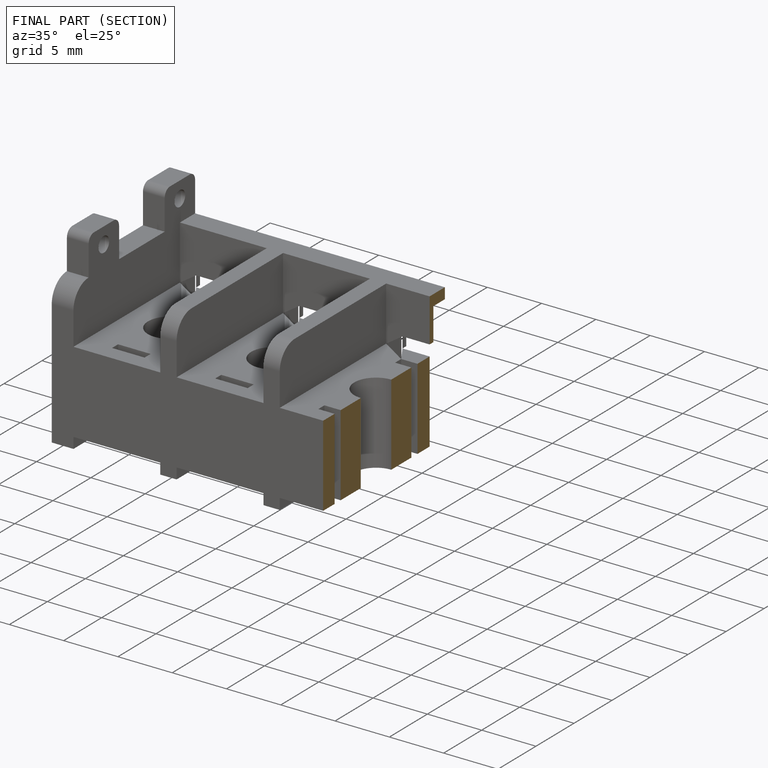
[diagram: finished part — half-section view (interior)]
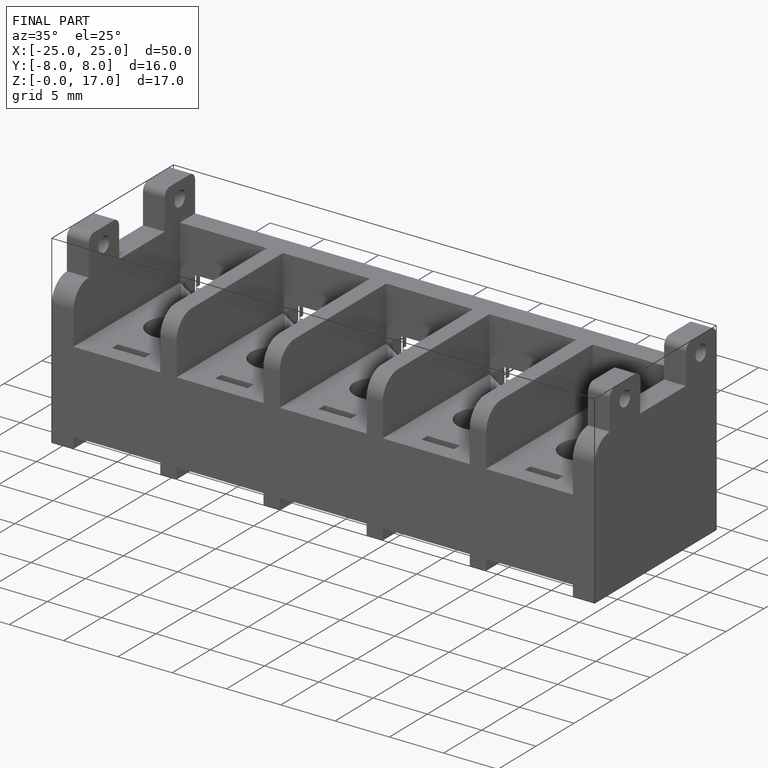
[diagram: finished part — iso view with bounding-box wireframe]
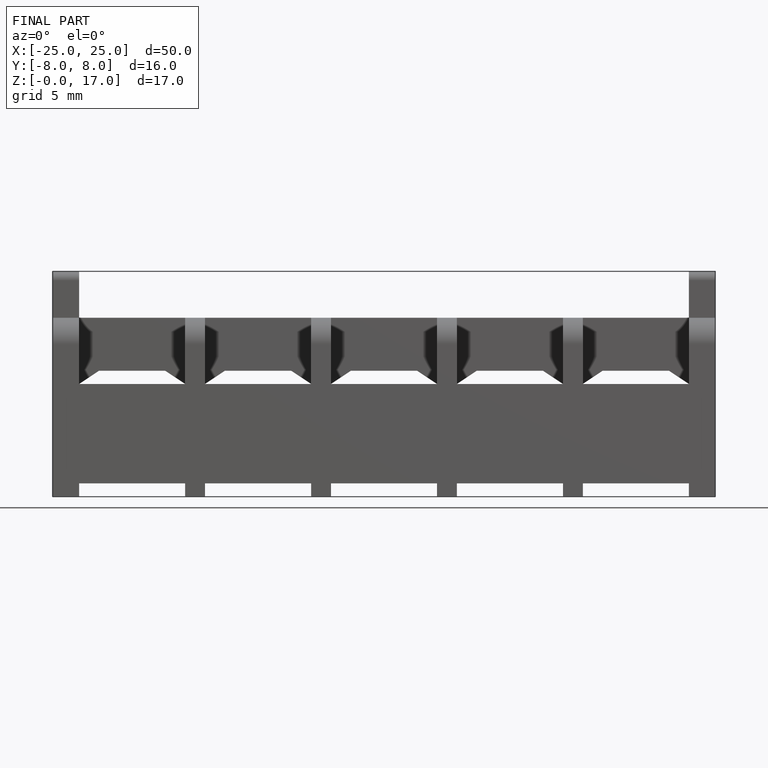
[diagram: finished part — front view with bounding-box wireframe]
